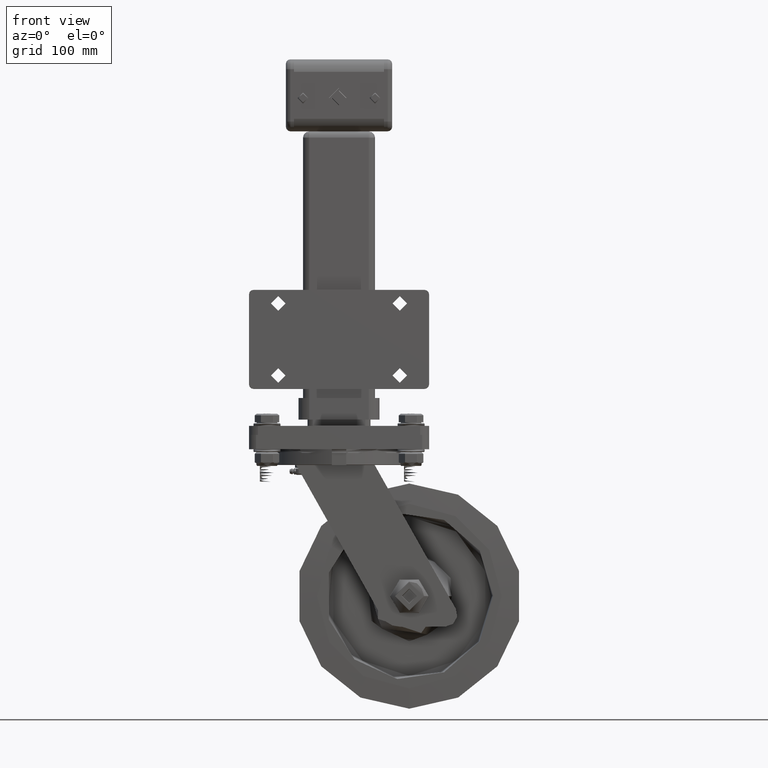
[diagram: clean part render]
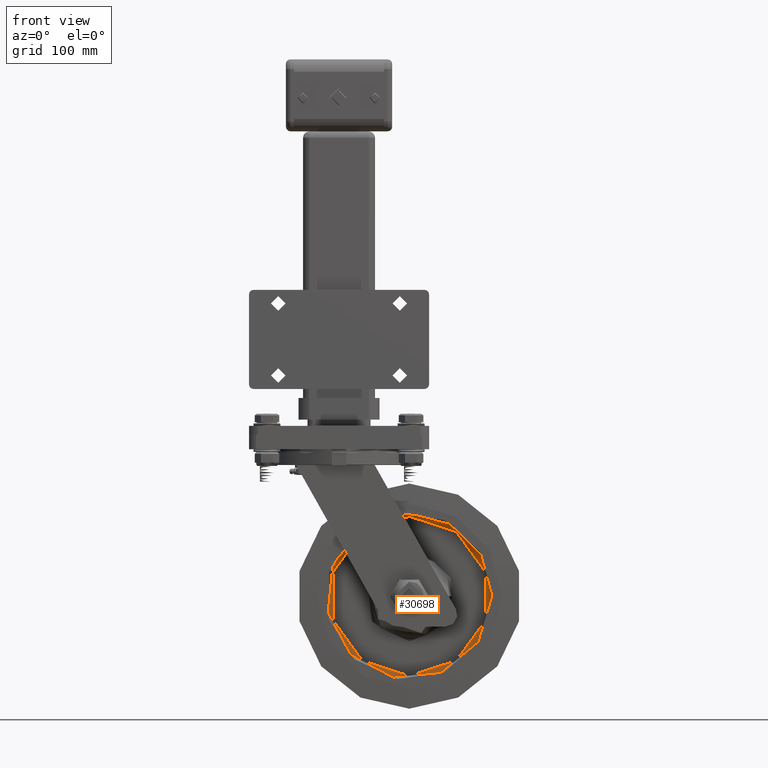
[diagram: same view with one face highlighted and labeled with its STEP entity id]
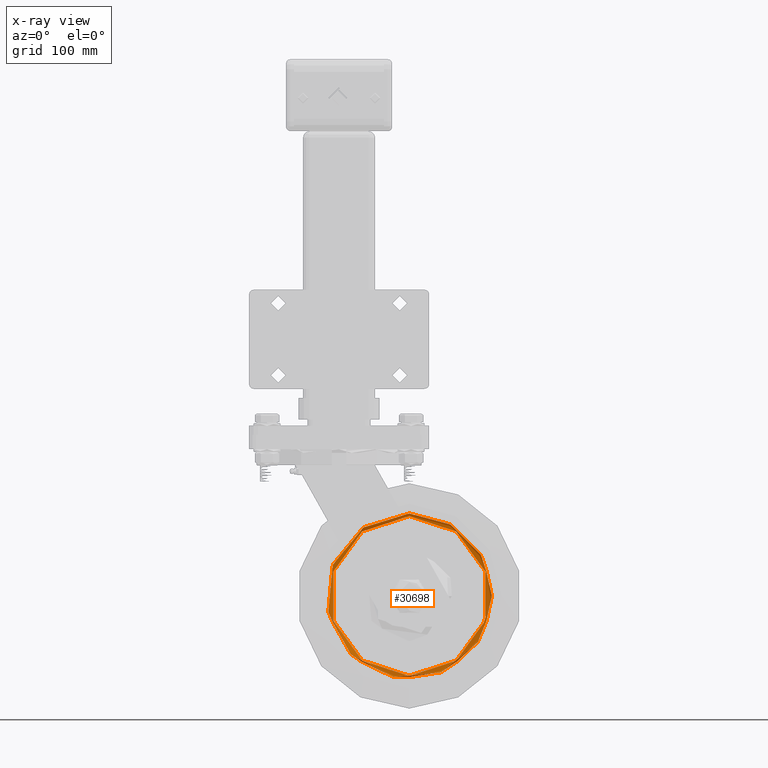
[diagram: x-ray of the same camera — body ghosted, the highlighted face saturated]
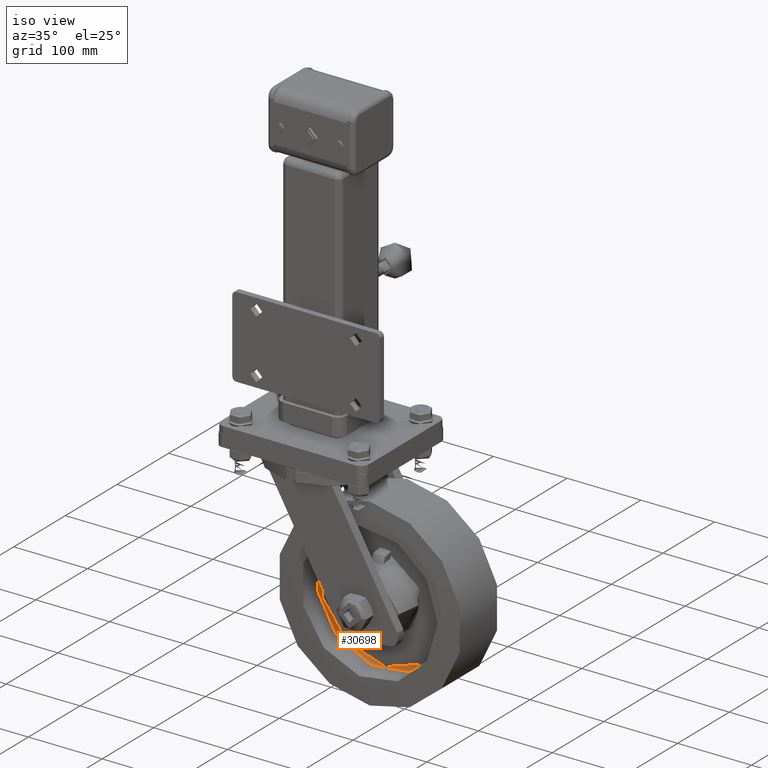
[diagram: same view with one face highlighted and labeled with its STEP entity id]
A machine part, front view. The second image highlights one B-rep face of the part: STEP entity #30698.
The next image is the same camera in x-ray: the body ghosted, the highlighted face saturated — about 0% of this face is hidden behind the body in this view.
A second angle (iso view) of the same face is appended — the face is thin or edge-on in the first view.
In plain terms, the highlighted toroidal blend (fillet) surface has major radius 88.6417 mm and minor (blend) radius 3 mm.
Its self-contained STEP definition (entity closure, byte-faithful):
#1994=TOROIDAL_SURFACE('',#33457,88.64165137687,3.);
#2396=CIRCLE('',#33454,91.638145565116);
#2397=CIRCLE('',#33455,91.638145565116);
#2399=CIRCLE('',#33458,3.);
#2400=CIRCLE('',#33459,88.64165137687);
#3947=FACE_OUTER_BOUND('',#5887,.T.);
#5887=EDGE_LOOP('',(#21929,#21930,#21931,#21932,#21933));
#13082=VERTEX_POINT('',#60188);
#13083=VERTEX_POINT('',#60189);
#13085=VERTEX_POINT('',#60196);
#16372=EDGE_CURVE('',#13082,#13083,#2396,.T.);
#16373=EDGE_CURVE('',#13083,#13082,#2397,.T.);
#16376=EDGE_CURVE('',#13083,#13085,#2399,.T.);
#16377=EDGE_CURVE('',#13085,#13085,#2400,.T.);
#21929=ORIENTED_EDGE('',*,*,#16372,.F.);
#21930=ORIENTED_EDGE('',*,*,#16373,.F.);
#21931=ORIENTED_EDGE('',*,*,#16376,.T.);
#21932=ORIENTED_EDGE('',*,*,#16377,.T.);
#21933=ORIENTED_EDGE('',*,*,#16376,.F.);
#30698=ADVANCED_FACE('',(#3947),#1994,.F.);
#33454=AXIS2_PLACEMENT_3D('',#60190,#37692,#37693);
#33455=AXIS2_PLACEMENT_3D('',#60191,#37694,#37695);
#33457=AXIS2_PLACEMENT_3D('',#60195,#37699,#37700);
#33458=AXIS2_PLACEMENT_3D('',#60197,#37701,#37702);
#33459=AXIS2_PLACEMENT_3D('',#60198,#37703,#37704);
#37692=DIRECTION('center_axis',(-3.49148336110938E-15,1.,0.));
#37693=DIRECTION('ref_axis',(-1.,-3.49148336110938E-15,0.));
#37694=DIRECTION('center_axis',(-3.49148336110938E-15,1.,0.));
#37695=DIRECTION('ref_axis',(-1.,-3.49148336110938E-15,0.));
#37699=DIRECTION('center_axis',(-3.49148336110938E-15,1.,0.));
#37700=DIRECTION('ref_axis',(0.,0.,-1.));
#37701=DIRECTION('center_axis',(-1.,-3.49148336110938E-15,1.22464679914735E-16));
#37702=DIRECTION('ref_axis',(1.22464679914735E-16,0.,1.));
#37703=DIRECTION('center_axis',(-3.49148336110938E-15,1.,0.));
#37704=DIRECTION('ref_axis',(-1.,-3.49148336110938E-15,0.));
#60188=CARTESIAN_POINT('',(91.638145565116,-9.35500834572971,1.12224361646119E-14));
#60189=CARTESIAN_POINT('',(3.69463982428605E-14,-9.35500834573003,91.638145565116));
#60190=CARTESIAN_POINT('Origin',(2.57239620782486E-14,-9.35500834573003,
0.));
#60191=CARTESIAN_POINT('Origin',(2.57239620782486E-14,-9.35500834573003,
0.));
#60195=CARTESIAN_POINT('Origin',(2.62301980266319E-14,-9.49999999999999,
0.));
#60196=CARTESIAN_POINT('',(2.66112194062857E-14,-6.5,88.64165137687));
#60197=CARTESIAN_POINT('Origin',(3.70856694896138E-14,-9.49999999999999,
88.64165137687));
#60198=CARTESIAN_POINT('Origin',(1.57557479433037E-14,-6.5,0.));